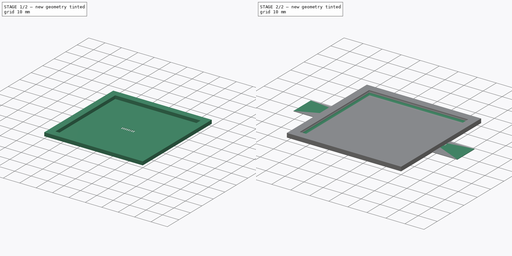
[diagram: build sequence overview — one tinted view per stage of 2, left to right]
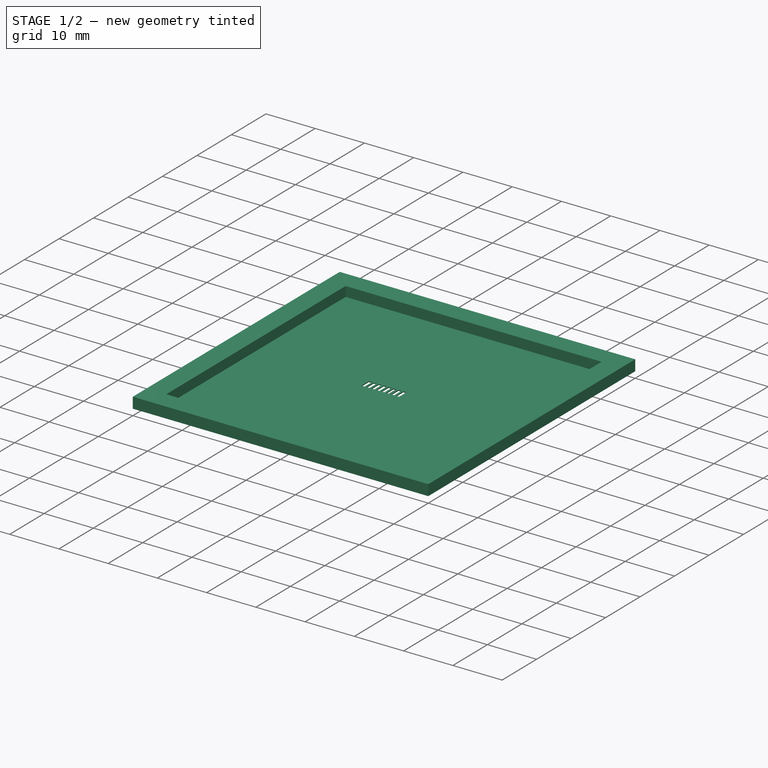
[diagram: stage 1 of 2 — iso view after this stage's code; geometry added in this stage tinted green]
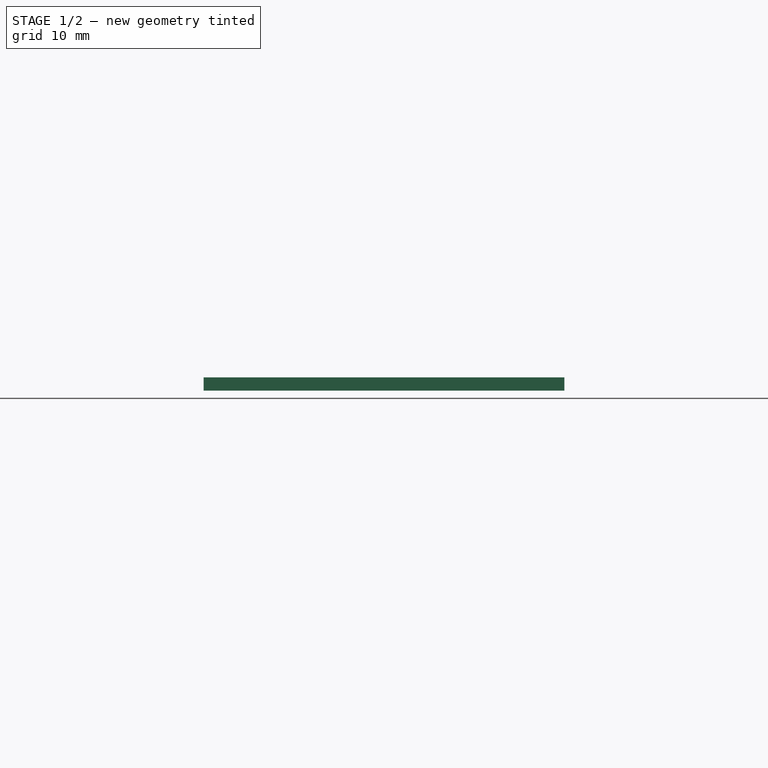
[diagram: stage 1 of 2 — front view after this stage's code; geometry added in this stage tinted green]
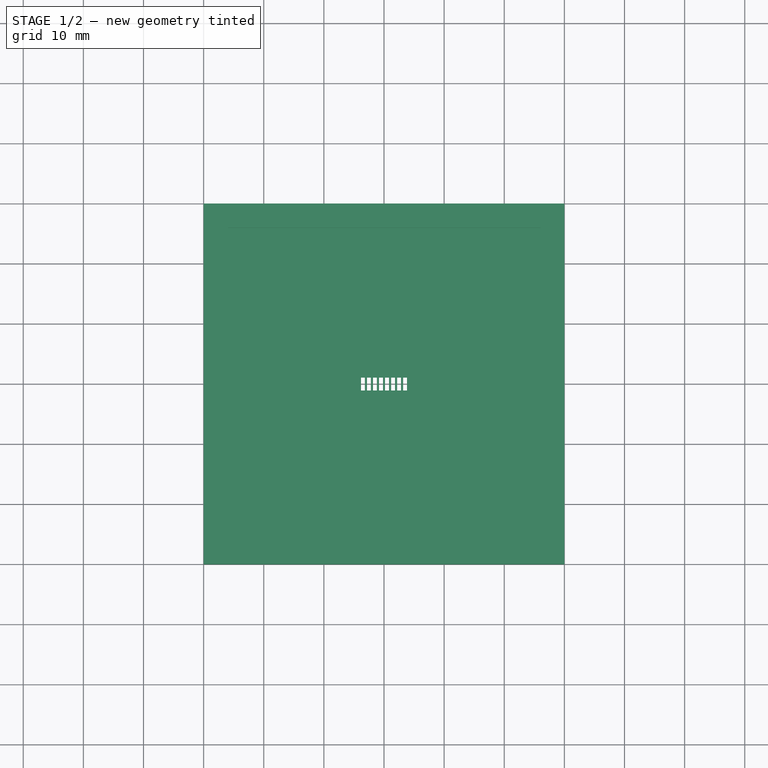
[diagram: stage 1 of 2 — top view after this stage's code; geometry added in this stage tinted green]
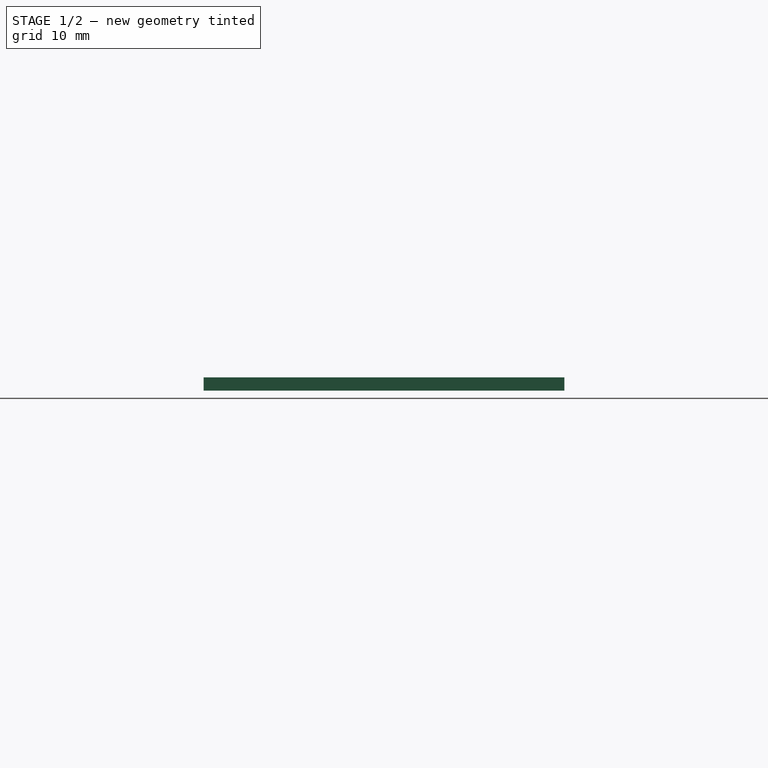
[diagram: stage 1 of 2 — right view after this stage's code; geometry added in this stage tinted green]
FCSTD DOCUMENT  (FreeCAD 0.18R15969 (Git))
Label: interface_board_ffc_stencil
License: All rights reserved
LicenseURL: http://en.wikipedia.org/wiki/All_rights_reserved
objects: Sketcher::SketchObject×3, PartDesign::Pad×3, PartDesign::Body×2, PartDesign::Fillet×1
note: 12 computed .brp shape members not serialized (recipe doc carries the construction recipe); baked Part::Feature solids carry a one-line shape summary decoded from their .brp

FEATURE [PartDesign::Body] Body
  Group = -> [Sketch,Pad]
  Origin = -> Origin
  Tip = -> Pad
FEATURE [Sketcher::SketchObject] Sketch001
  MapMode = 5
  Support = -> [XY_Plane001]
  sketch-geometry (47):
    g0: LineSegment StartX=30 StartY=30 StartZ=0 EndX=-30 EndY=30 EndZ=0
    g1: LineSegment StartX=-30 StartY=30 StartZ=0 EndX=-30 EndY=-30 EndZ=0
    g2: LineSegment StartX=-30 StartY=-30 StartZ=0 EndX=30 EndY=-30 EndZ=0
    g3: LineSegment StartX=30 StartY=-30 StartZ=0 EndX=30 EndY=30 EndZ=0
    g4: Circle [constr] CenterX=0 CenterY=0 CenterZ=0 NormalX=0 NormalY=0 NormalZ=1 AngleXU=0 Radius=42.4264
    g5: LineSegment StartX=-3.825 StartY=-1.075 StartZ=0 EndX=-3.175 EndY=-1.075 EndZ=0
    g6: LineSegment StartX=-3.175 StartY=-1.075 StartZ=0 EndX=-3.175 EndY=1.075 EndZ=0
    g7: LineSegment StartX=-3.175 StartY=1.075 StartZ=0 EndX=-3.825 EndY=1.075 EndZ=0
    g8: LineSegment StartX=-3.825 StartY=1.075 StartZ=0 EndX=-3.825 EndY=-1.075 EndZ=0
    g9: LineSegment StartX=-2.825 StartY=-1.075 StartZ=0 EndX=-2.175 EndY=-1.075 EndZ=0
    g10: LineSegment StartX=-2.175 StartY=-1.075 StartZ=0 EndX=-2.175 EndY=1.075 EndZ=0
    g11: LineSegment StartX=-2.175 StartY=1.075 StartZ=0 EndX=-2.825 EndY=1.075 EndZ=0
    g12: LineSegment StartX=-2.825 StartY=1.075 StartZ=0 EndX=-2.825 EndY=-1.075 EndZ=0
    g13: LineSegment [constr] StartX=-3.825 StartY=-1.075 StartZ=0 EndX=-2.825 EndY=-1.075 EndZ=0
    g14: LineSegment StartX=-1.825 StartY=-1.075 StartZ=0 EndX=-1.175 EndY=-1.075 EndZ=0
    g15: LineSegment StartX=-1.175 StartY=-1.075 StartZ=0 EndX=-1.175 EndY=1.075 EndZ=0
    g16: LineSegment StartX=-1.175 StartY=1.075 StartZ=0 EndX=-1.825 EndY=1.075 EndZ=0
    g17: LineSegment StartX=-1.825 StartY=1.075 StartZ=0 EndX=-1.825 EndY=-1.075 EndZ=0
    g18: LineSegment [constr] StartX=-2.825 StartY=-1.075 StartZ=0 EndX=-1.825 EndY=-1.075 EndZ=0
    g19: LineSegment StartX=-0.825 StartY=-1.075 StartZ=0 EndX=-0.175 EndY=-1.075 EndZ=0
    g20: LineSegment StartX=-0.175 StartY=-1.075 StartZ=0 EndX=-0.175 EndY=1.075 EndZ=0
    g21: LineSegment StartX=-0.175 StartY=1.075 StartZ=0 EndX=-0.825 EndY=1.075 EndZ=0
    g22: LineSegment StartX=-0.825 StartY=1.075 StartZ=0 EndX=-0.825 EndY=-1.075 EndZ=0
    g23: LineSegment [constr] StartX=-1.825 StartY=-1.075 StartZ=0 EndX=-0.825 EndY=-1.075 EndZ=0
    g24: LineSegment StartX=0.175 StartY=-1.075 StartZ=0 EndX=0.825 EndY=-1.075 EndZ=0
    g25: LineSegment StartX=0.825 StartY=-1.075 StartZ=0 EndX=0.825 EndY=1.075 EndZ=0
    g26: LineSegment StartX=0.825 StartY=1.075 StartZ=0 EndX=0.175 EndY=1.075 EndZ=0
    g27: LineSegment StartX=0.175 StartY=1.075 StartZ=0 EndX=0.175 EndY=-1.075 EndZ=0
    g28: LineSegment [constr] StartX=-0.825 StartY=-1.075 StartZ=0 EndX=0.175 EndY=-1.075 EndZ=0
    g29: LineSegment StartX=1.175 StartY=-1.075 StartZ=0 EndX=1.825 EndY=-1.075 EndZ=0
    g30: LineSegment StartX=1.825 StartY=-1.075 StartZ=0 EndX=1.825 EndY=1.075 EndZ=0
    g31: LineSegment StartX=1.825 StartY=1.075 StartZ=0 EndX=1.175 EndY=1.075 EndZ=0
    g32: LineSegment StartX=1.175 StartY=1.075 StartZ=0 EndX=1.175 EndY=-1.075 EndZ=0
    g33: LineSegment [constr] StartX=0.175 StartY=-1.075 StartZ=0 EndX=1.175 EndY=-1.075 EndZ=0
    g34: LineSegment StartX=2.175 StartY=-1.075 StartZ=0 EndX=2.825 EndY=-1.075 EndZ=0
    g35: LineSegment StartX=2.825 StartY=-1.075 StartZ=0 EndX=2.825 EndY=1.075 EndZ=0
    g36: LineSegment StartX=2.825 StartY=1.075 StartZ=0 EndX=2.175 EndY=1.075 EndZ=0
    g37: LineSegment StartX=2.175 StartY=1.075 StartZ=0 EndX=2.175 EndY=-1.075 EndZ=0
    g38: LineSegment [constr] StartX=1.175 StartY=-1.075 StartZ=0 EndX=2.175 EndY=-1.075 EndZ=0
    g39: LineSegment StartX=3.175 StartY=-1.075 StartZ=0 EndX=3.825 EndY=-1.075 EndZ=0
    g40: LineSegment StartX=3.825 StartY=-1.075 StartZ=0 EndX=3.825 EndY=1.075 EndZ=0
    g41: LineSegment StartX=3.825 StartY=1.075 StartZ=0 EndX=3.175 EndY=1.075 EndZ=0
    g42: LineSegment StartX=3.175 StartY=1.075 StartZ=0 EndX=3.175 EndY=-1.075 EndZ=0
    g43: LineSegment [constr] StartX=2.175 StartY=-1.075 StartZ=0 EndX=3.175 EndY=-1.075 EndZ=0
    g44: LineSegment [constr] StartX=-0.175 StartY=1.075 StartZ=0 EndX=0 EndY=0 EndZ=0
    g45: LineSegment [constr] StartX=0 StartY=0 StartZ=0 EndX=0.175 EndY=1.075 EndZ=0
    g46: LineSegment [constr] StartX=0 StartY=0 StartZ=0 EndX=-0.175 EndY=-1.075 EndZ=0
  constraints (130):
    c: Coincident(g0,g1)
    c: Coincident(g1,g2)
    c: Coincident(g2,g3)
    c: Coincident(g3,g0)
    c: Equal(g0,g1)
    c: Equal(g0,g2)
    c: Equal(g0,g3)
    c: PointOnObject(g0,g4)
    c: PointOnObject(g1,g4)
    c: PointOnObject(g2,g4)
    c: PointOnObject(g3,g4)
    c: Coincident(g4,g-1)
    c: Horizontal(g0)
    c: DistanceX(g0,g0) = 60
    c: Coincident(g5,g6)
    c: Coincident(g6,g7)
    c: Coincident(g7,g8)
    c: Coincident(g8,g5)
    c: Horizontal(g5)
    c: Horizontal(g7)
    c: Vertical(g6)
    c: Vertical(g8)
    c: DistanceX(g7,g7) = 0.65
    c: DistanceY(g8,g8) = 2.15
    c: Coincident(g9,g10)
    c: Coincident(g10,g11)
    c: Coincident(g11,g12)
    c: Coincident(g12,g9)
    c: Horizontal(g9)
    c: Horizontal(g11)
    c: Vertical(g10)
    c: Vertical(g12)
    c: Coincident(g5,g13)
    c: Coincident(g9,g13)
    c: Distance(g13) = 1
    c: Angle(g13) = 0
    c: Coincident(g14,g15)
    c: Coincident(g15,g16)
    c: Coincident(g16,g17)
    c: Coincident(g17,g14)
    c: Horizontal(g14)
    c: Horizontal(g16)
    c: Vertical(g15)
    c: Vertical(g17)
    c: Coincident(g9,g18)
    c: Coincident(g14,g18)
    c: Equal(g13,g18)
    c: Parallel(g18,g13)
    c: Coincident(g19,g20)
    c: Coincident(g20,g21)
    c: Coincident(g21,g22)
    c: Coincident(g22,g19)
    c: Horizontal(g19)
    c: Horizontal(g21)
    c: Vertical(g22)
    c: Coincident(g14,g23)
    c: Coincident(g19,g23)
    c: Equal(g13,g23)
    c: Parallel(g23,g13)
    c: Coincident(g24,g25)
    c: Coincident(g25,g26)
    c: Coincident(g26,g27)
    c: Coincident(g27,g24)
    c: Horizontal(g24)
    c: Horizontal(g26)
    c: Vertical(g25)
    c: Vertical(g27)
    c: Coincident(g19,g28)
    c: Coincident(g24,g28)
    c: Equal(g13,g28)
    c: Parallel(g28,g13)
    c: Coincident(g29,g30)
    c: Coincident(g30,g31)
    c: Coincident(g31,g32)
    c: Coincident(g32,g29)
    c: Horizontal(g29)
    c: Horizontal(g31)
    c: Vertical(g30)
    c: Vertical(g32)
    c: Coincident(g24,g33)
    c: Coincident(g29,g33)
    c: Equal(g13,g33)
    c: Parallel(g33,g13)
    c: Coincident(g34,g35)
    c: Coincident(g35,g36)
    c: Coincident(g36,g37)
    c: Coincident(g37,g34)
    c: Horizontal(g34)
    c: Horizontal(g36)
    c: Vertical(g35)
    c: Vertical(g37)
    c: Coincident(g29,g38)
    c: Coincident(g34,g38)
    c: Equal(g13,g38)
    c: Parallel(g38,g13)
    c: Coincident(g39,g40)
    c: Coincident(g40,g41)
    c: Coincident(g41,g42)
    c: Coincident(g42,g39)
    c: Horizontal(g39)
    c: Horizontal(g41)
    c: Vertical(g40)
    c: Vertical(g42)
    c: Coincident(g34,g43)
    c: Coincident(g39,g43)
    c: Equal(g13,g43)
    c: Parallel(g43,g13)
    c: Coincident(g44,g20)
    c: Coincident(g44,g-1)
    c: Coincident(g45,g-1)
    c: Coincident(g45,g26)
    c: Coincident(g46,g-1)
    c: Coincident(g46,g19)
    c: Equal(g46,g44)
    c: Equal(g44,g45)
    c: Equal(g41,g36)
    c: Equal(g36,g31)
    c: Equal(g31,g26)
    c: Equal(g26,g21)
    c: Equal(g21,g16)
    c: Equal(g16,g11)
    c: Equal(g11,g7)
    c: Equal(g42,g37)
    c: Equal(g37,g32)
    c: Equal(g32,g27)
    c: Equal(g27,g22)
    c: Equal(g22,g17)
    c: Equal(g17,g12)
    c: Equal(g12,g8)
    c: Vertical(g20)
FEATURE [PartDesign::Pad] Pad001
  Length = 0.2
  Length2 = 100
  Profile = -> Sketch001
  Refine = true
  Type = 0
FEATURE [Sketcher::SketchObject] Sketch002
  ExternalGeometry = -> [Pad001]
  MapMode = 5
  Placement = pos=(0,0,0.2) rot=(0,0,1;0rad)
  Support = -> [Pad001]
  sketch-geometry (9):
    g0: LineSegment StartX=-30 StartY=30 StartZ=0 EndX=30 EndY=30 EndZ=0
    g1: LineSegment StartX=30 StartY=30 StartZ=0 EndX=30 EndY=-30 EndZ=0
    g2: LineSegment StartX=30 StartY=-30 StartZ=0 EndX=-30 EndY=-30 EndZ=0
    g3: LineSegment StartX=-30 StartY=-30 StartZ=0 EndX=-30 EndY=30 EndZ=0
    g4: LineSegment StartX=-26 StartY=26 StartZ=0 EndX=-26 EndY=-26 EndZ=0
    g5: LineSegment StartX=-26 StartY=-26 StartZ=0 EndX=26 EndY=-26 EndZ=0
    g6: LineSegment StartX=26 StartY=-26 StartZ=0 EndX=26 EndY=26 EndZ=0
    g7: LineSegment StartX=26 StartY=26 StartZ=0 EndX=-26 EndY=26 EndZ=0
    g8: Circle [constr] CenterX=0 CenterY=0 CenterZ=0 NormalX=0 NormalY=0 NormalZ=1 AngleXU=0 Radius=36.7696
  constraints (23):
    c: Coincident(g0,g-4)
    c: Coincident(g0,g-6)
    c: Coincident(g1,g0)
    c: Vertical(g1)
    c: Coincident(g2,g1)
    c: Coincident(g2,g-5)
    c: Horizontal(g2)
    c: Coincident(g3,g2)
    c: Coincident(g3,g0)
    c: Coincident(g4,g5)
    c: Coincident(g5,g6)
    c: Coincident(g6,g7)
    c: Coincident(g7,g4)
    c: Equal(g4,g5)
    c: Equal(g4,g6)
    c: Equal(g4,g7)
    c: PointOnObject(g4,g8)
    c: PointOnObject(g5,g8)
    c: PointOnObject(g6,g8)
    c: PointOnObject(g7,g8)
    c: Coincident(g8,g-1)
    c: DistanceX(g7,g7) = 52
    c: Horizontal(g7)
FEATURE [PartDesign::Pad] Pad002
  BaseFeature = -> Pad001
  Length = 2
  Length2 = 100
  Profile = -> Sketch002
  Refine = true
  Type = 0
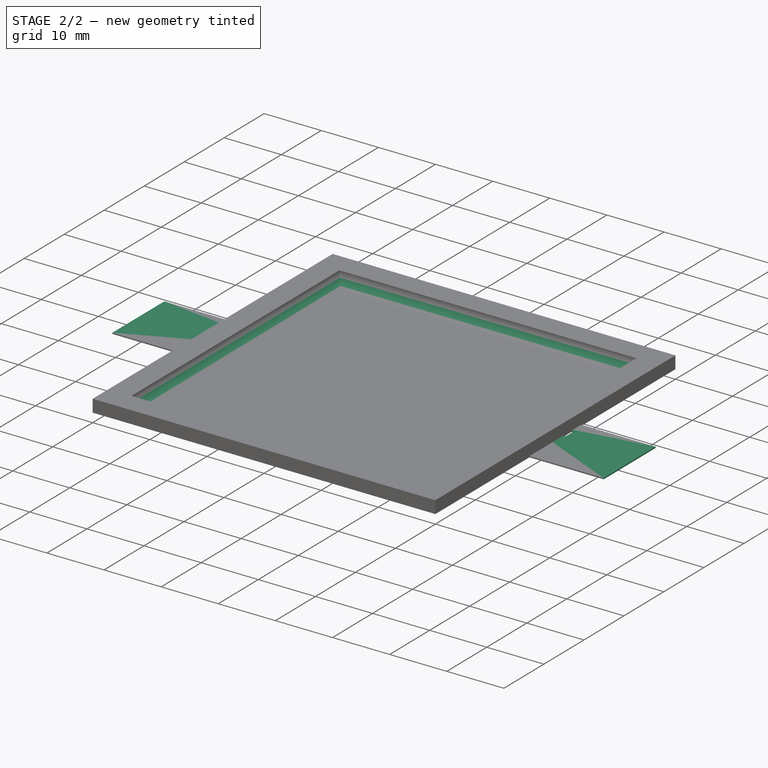
[diagram: stage 2 of 2 — iso view after this stage's code; geometry added in this stage tinted green]
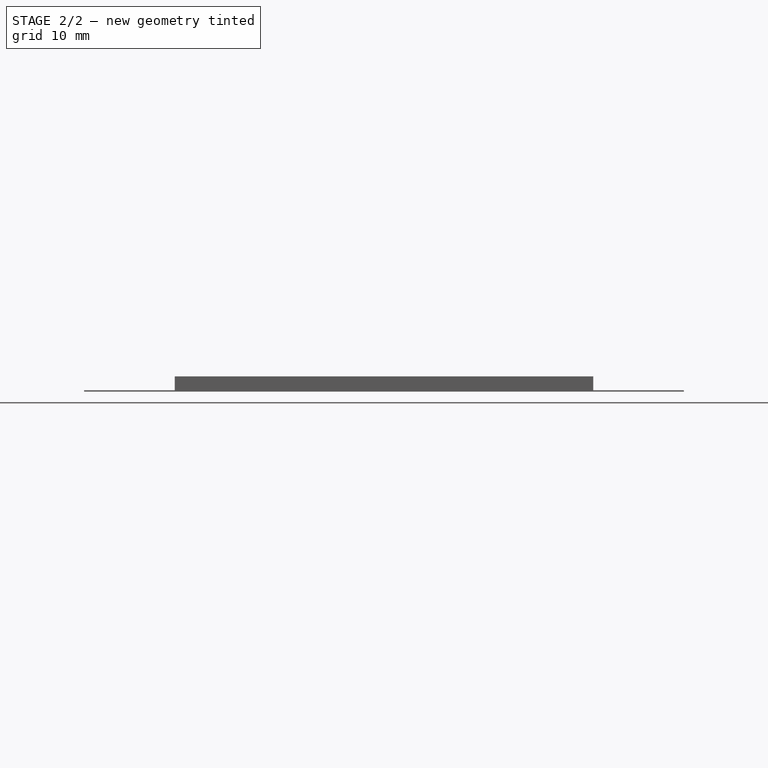
[diagram: stage 2 of 2 — front view after this stage's code; geometry added in this stage tinted green]
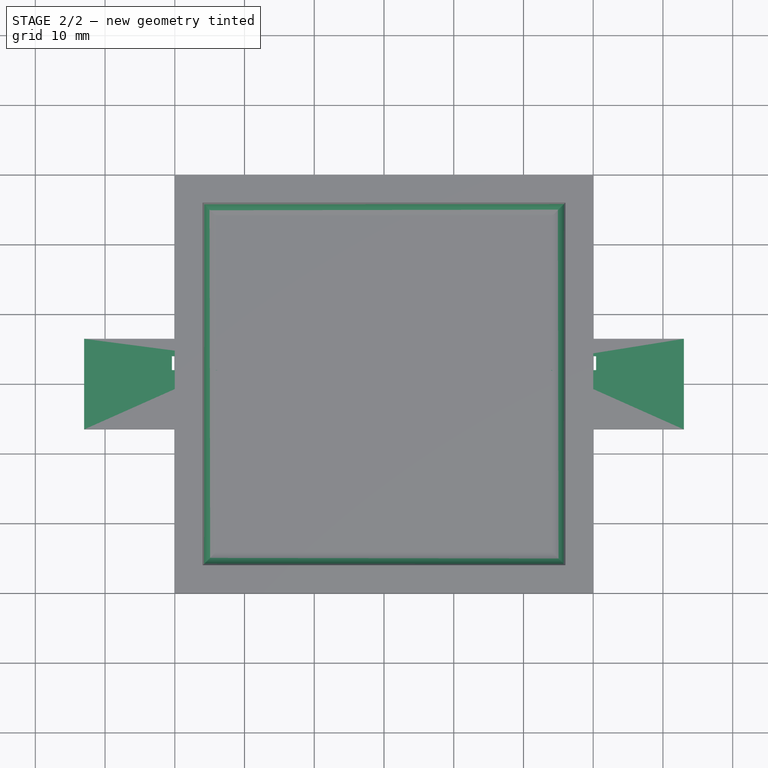
[diagram: stage 2 of 2 — top view after this stage's code; geometry added in this stage tinted green]
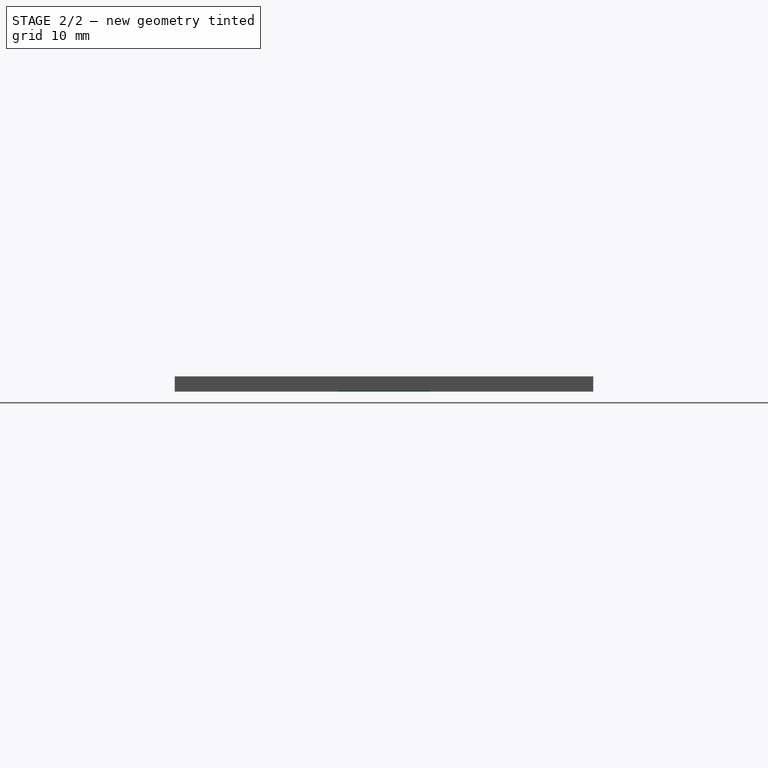
[diagram: stage 2 of 2 — right view after this stage's code; geometry added in this stage tinted green]
FEATURE [Sketcher::SketchObject] Sketch
  MapMode = 5
  Support = -> [XY_Plane]
  sketch-geometry (89):
    g0: LineSegment StartX=-43 StartY=6.5 StartZ=0 EndX=43 EndY=6.5 EndZ=0
    g1: LineSegment StartX=43 StartY=6.5 StartZ=0 EndX=43 EndY=-6.5 EndZ=0
    g2: LineSegment StartX=43 StartY=-6.5 StartZ=0 EndX=-43 EndY=-6.5 EndZ=0
    g3: LineSegment StartX=-43 StartY=-6.5 StartZ=0 EndX=-43 EndY=6.5 EndZ=0
    g4: LineSegment [constr] StartX=-43 StartY=6.5 StartZ=0 EndX=0 EndY=0 EndZ=0
    g5: LineSegment [constr] StartX=0 StartY=0 StartZ=0 EndX=43 EndY=6.5 EndZ=0
    g6: LineSegment [constr] StartX=0 StartY=0 StartZ=0 EndX=-43 EndY=-6.5 EndZ=0
    g7: LineSegment StartX=-30.42 StartY=2 StartZ=0 EndX=-29.92 EndY=2 EndZ=0
    g8: LineSegment StartX=-29.92 StartY=2 StartZ=0 EndX=-29.92 EndY=4 EndZ=0
    g9: LineSegment StartX=-29.92 StartY=4 StartZ=0 EndX=-30.42 EndY=4 EndZ=0
    g10: LineSegment StartX=-30.42 StartY=4 StartZ=0 EndX=-30.42 EndY=2 EndZ=0
    g11: LineSegment StartX=-29.42 StartY=2 StartZ=0 EndX=-28.92 EndY=2 EndZ=0
    g12: LineSegment StartX=-28.92 StartY=2 StartZ=0 EndX=-28.92 EndY=4 EndZ=0
    g13: LineSegment StartX=-28.92 StartY=4 StartZ=0 EndX=-29.42 EndY=4 EndZ=0
    g14: LineSegment StartX=-29.42 StartY=4 StartZ=0 EndX=-29.42 EndY=2 EndZ=0
    g15: LineSegment StartX=-28.42 StartY=2 StartZ=0 EndX=-27.92 EndY=2 EndZ=0
    g16: LineSegment StartX=-27.92 StartY=2 StartZ=0 EndX=-27.92 EndY=4 EndZ=0
    g17: LineSegment StartX=-27.92 StartY=4 StartZ=0 EndX=-28.42 EndY=4 EndZ=0
    g18: LineSegment StartX=-28.42 StartY=4 StartZ=0 EndX=-28.42 EndY=2 EndZ=0
    g19: LineSegment StartX=-27.42 StartY=2 StartZ=0 EndX=-26.92 EndY=2 EndZ=0
    g20: LineSegment StartX=-26.92 StartY=2 StartZ=0 EndX=-26.92 EndY=4 EndZ=0
    g21: LineSegment StartX=-26.92 StartY=4 StartZ=0 EndX=-27.42 EndY=4 EndZ=0
    g22: LineSegment StartX=-27.42 StartY=4 StartZ=0 EndX=-27.42 EndY=2 EndZ=0
    g23: LineSegment StartX=-26.42 StartY=2 StartZ=0 EndX=-25.92 EndY=2 EndZ=0
    g24: LineSegment StartX=-25.92 StartY=2 StartZ=0 EndX=-25.92 EndY=4 EndZ=0
    g25: LineSegment StartX=-25.92 StartY=4 StartZ=0 EndX=-26.42 EndY=4 EndZ=0
    g26: LineSegment StartX=-26.42 StartY=4 StartZ=0 EndX=-26.42 EndY=2 EndZ=0
    g27: LineSegment StartX=-25.42 StartY=2 StartZ=0 EndX=-24.92 EndY=2 EndZ=0
    g28: LineSegment StartX=-24.92 StartY=2 StartZ=0 EndX=-24.92 EndY=4 EndZ=0
    g29: LineSegment StartX=-24.92 StartY=4 StartZ=0 EndX=-25.42 EndY=4 EndZ=0
    g30: LineSegment StartX=-25.42 StartY=4 StartZ=0 EndX=-25.42 EndY=2 EndZ=0
    g31: LineSegment StartX=-24.42 StartY=2 StartZ=0 EndX=-23.92 EndY=2 EndZ=0
    g32: LineSegment StartX=-23.92 StartY=2 StartZ=0 EndX=-23.92 EndY=4 EndZ=0
    g33: LineSegment StartX=-23.92 StartY=4 StartZ=0 EndX=-24.42 EndY=4 EndZ=0
    g34: LineSegment StartX=-24.42 StartY=4 StartZ=0 EndX=-24.42 EndY=2 EndZ=0
    g35: LineSegment StartX=-23.42 StartY=2 StartZ=0 EndX=-22.92 EndY=2 EndZ=0
    g36: LineSegment StartX=-22.92 StartY=2 StartZ=0 EndX=-22.92 EndY=4 EndZ=0
    g37: LineSegment StartX=-22.92 StartY=4 StartZ=0 EndX=-23.42 EndY=4 EndZ=0
    g38: LineSegment StartX=-23.42 StartY=4 StartZ=0 EndX=-23.42 EndY=2 EndZ=0
    g39: LineSegment [constr] StartX=-29.92 StartY=4 StartZ=0 EndX=-29.42 EndY=4 EndZ=0
    g40: LineSegment [constr] StartX=-28.92 StartY=4 StartZ=0 EndX=-28.42 EndY=4 EndZ=0
    g41: LineSegment [constr] StartX=-27.92 StartY=4 StartZ=0 EndX=-27.42 EndY=4 EndZ=0
    g42: LineSegment [constr] StartX=-26.92 StartY=4 StartZ=0 EndX=-26.42 EndY=4 EndZ=0
    g43: LineSegment [constr] StartX=-25.92 StartY=4 StartZ=0 EndX=-25.42 EndY=4 EndZ=0
    g44: LineSegment [constr] StartX=-24.92 StartY=4 StartZ=0 EndX=-24.42 EndY=4 EndZ=0
    g45: LineSegment [constr] StartX=-23.92 StartY=4 StartZ=0 EndX=-23.42 EndY=4 EndZ=0
    g46: LineSegment [constr] StartX=-30.42 StartY=4 StartZ=0 EndX=-26.67 EndY=6.5 EndZ=0
    g47: LineSegment [constr] StartX=-26.67 StartY=6.5 StartZ=0 EndX=-22.92 EndY=4 EndZ=0
    g48: LineSegment StartX=22.92 StartY=2 StartZ=0 EndX=23.42 EndY=2 EndZ=0
    g49: LineSegment StartX=23.42 StartY=2 StartZ=0 EndX=23.42 EndY=4 EndZ=0
    g50: LineSegment StartX=23.42 StartY=4 StartZ=0 EndX=22.92 EndY=4 EndZ=0
    g51: LineSegment StartX=22.92 StartY=4 StartZ=0 EndX=22.92 EndY=2 EndZ=0
    g52: LineSegment StartX=23.92 StartY=2 StartZ=0 EndX=24.42 EndY=2 EndZ=0
    g53: LineSegment StartX=24.42 StartY=2 StartZ=0 EndX=24.42 EndY=4 EndZ=0
    g54: LineSegment StartX=24.42 StartY=4 StartZ=0 EndX=23.92 EndY=4 EndZ=0
    g55: LineSegment StartX=23.92 StartY=4 StartZ=0 EndX=23.92 EndY=2 EndZ=0
    g56: LineSegment StartX=24.92 StartY=2 StartZ=0 EndX=25.42 EndY=2 EndZ=0
    g57: LineSegment StartX=25.42 StartY=2 StartZ=0 EndX=25.42 EndY=4 EndZ=0
    g58: LineSegment StartX=25.42 StartY=4 StartZ=0 EndX=24.92 EndY=4 EndZ=0
    g59: LineSegment StartX=24.92 StartY=4 StartZ=0 EndX=24.92 EndY=2 EndZ=0
    g60: LineSegment StartX=25.92 StartY=2 StartZ=0 EndX=26.42 EndY=2 EndZ=0
    g61: LineSegment StartX=26.42 StartY=2 StartZ=0 EndX=26.42 EndY=4 EndZ=0
    g62: LineSegment StartX=26.42 StartY=4 StartZ=0 EndX=25.92 EndY=4 EndZ=0
    g63: LineSegment StartX=25.92 StartY=4 StartZ=0 EndX=25.92 EndY=2 EndZ=0
    g64: LineSegment StartX=26.92 StartY=2 StartZ=0 EndX=27.42 EndY=2 EndZ=0
    g65: LineSegment StartX=27.42 StartY=2 StartZ=0 EndX=27.42 EndY=4 EndZ=0
    g66: LineSegment StartX=27.42 StartY=4 StartZ=0 EndX=26.92 EndY=4 EndZ=0
    g67: LineSegment StartX=26.92 StartY=4 StartZ=0 EndX=26.92 EndY=2 EndZ=0
    g68: LineSegment StartX=27.92 StartY=2 StartZ=0 EndX=28.42 EndY=2 EndZ=0
    g69: LineSegment StartX=28.42 StartY=2 StartZ=0 EndX=28.42 EndY=4 EndZ=0
    g70: LineSegment StartX=28.42 StartY=4 StartZ=0 EndX=27.92 EndY=4 EndZ=0
    g71: LineSegment StartX=27.92 StartY=4 StartZ=0 EndX=27.92 EndY=2 EndZ=0
    g72: LineSegment StartX=28.92 StartY=2 StartZ=0 EndX=29.42 EndY=2 EndZ=0
    g73: LineSegment StartX=29.42 StartY=2 StartZ=0 EndX=29.42 EndY=4 EndZ=0
    g74: LineSegment StartX=29.42 StartY=4 StartZ=0 EndX=28.92 EndY=4 EndZ=0
    g75: LineSegment StartX=28.92 StartY=4 StartZ=0 EndX=28.92 EndY=2 EndZ=0
    g76: LineSegment StartX=29.92 StartY=2 StartZ=0 EndX=30.42 EndY=2 EndZ=0
    g77: LineSegment StartX=30.42 StartY=2 StartZ=0 EndX=30.42 EndY=4 EndZ=0
    g78: LineSegment StartX=30.42 StartY=4 StartZ=0 EndX=29.92 EndY=4 EndZ=0
    g79: LineSegment StartX=29.92 StartY=4 StartZ=0 EndX=29.92 EndY=2 EndZ=0
    g80: LineSegment [constr] StartX=23.42 StartY=4 StartZ=0 EndX=23.92 EndY=4 EndZ=0
    g81: LineSegment [constr] StartX=24.42 StartY=4 StartZ=0 EndX=24.92 EndY=4 EndZ=0
    g82: LineSegment [constr] StartX=25.42 StartY=4 StartZ=0 EndX=25.92 EndY=4 EndZ=0
    g83: LineSegment [constr] StartX=26.42 StartY=4 StartZ=0 EndX=26.92 EndY=4 EndZ=0
    g84: LineSegment [constr] StartX=27.42 StartY=4 StartZ=0 EndX=27.92 EndY=4 EndZ=0
    g85: LineSegment [constr] StartX=28.42 StartY=4 StartZ=0 EndX=28.92 EndY=4 EndZ=0
    g86: LineSegment [constr] StartX=29.42 StartY=4 StartZ=0 EndX=29.92 EndY=4 EndZ=0
    g87: LineSegment [constr] StartX=22.92 StartY=4 StartZ=0 EndX=26.67 EndY=6.5 EndZ=0
    g88: LineSegment [constr] StartX=26.67 StartY=6.5 StartZ=0 EndX=30.42 EndY=4 EndZ=0
  constraints (248):
    c: Coincident(g0,g1)
    c: Coincident(g1,g2)
    c: Coincident(g2,g3)
    c: Coincident(g3,g0)
    c: Horizontal(g0)
    c: Horizontal(g2)
    c: Vertical(g1)
    c: Vertical(g3)
    c: DistanceX(g0,g0) = 86
    c: DistanceY(g3,g3) = 13
    c: Coincident(g4,g0)
    c: Coincident(g4,g-1)
    c: Coincident(g5,g-1)
    c: Coincident(g5,g0)
    c: Coincident(g6,g-1)
    c: Coincident(g6,g2)
    c: Equal(g6,g4)
    c: Equal(g4,g5)
    c: Coincident(g7,g8)
    c: Coincident(g8,g9)
    c: Coincident(g9,g10)
    c: Coincident(g10,g7)
    c: Horizontal(g7)
    c: Horizontal(g9)
    c: Vertical(g8)
    c: Vertical(g10)
    c: Coincident(g11,g12)
    c: Coincident(g12,g13)
    c: Coincident(g13,g14)
    c: Coincident(g14,g11)
    c: Horizontal(g11)
    c: Horizontal(g13)
    c: Vertical(g12)
    c: Vertical(g14)
    c: Coincident(g15,g16)
    c: Coincident(g16,g17)
    c: Coincident(g17,g18)
    c: Coincident(g18,g15)
    c: Horizontal(g15)
    c: Horizontal(g17)
    c: Vertical(g16)
    c: Vertical(g18)
    c: Coincident(g19,g20)
    c: Coincident(g20,g21)
    c: Coincident(g21,g22)
    c: Coincident(g22,g19)
    c: Horizontal(g19)
    c: Horizontal(g21)
    c: Vertical(g20)
    c: Vertical(g22)
    c: Coincident(g23,g24)
    c: Coincident(g24,g25)
    c: Coincident(g25,g26)
    c: Coincident(g26,g23)
    c: Horizontal(g23)
    c: Horizontal(g25)
    c: Vertical(g24)
    c: Vertical(g26)
    c: Coincident(g27,g28)
    c: Coincident(g28,g29)
    c: Coincident(g29,g30)
    c: Coincident(g30,g27)
    c: Horizontal(g27)
    c: Horizontal(g29)
    c: Vertical(g28)
    c: Vertical(g30)
    c: Coincident(g31,g32)
    c: Coincident(g32,g33)
    c: Coincident(g33,g34)
    c: Coincident(g34,g31)
    c: Horizontal(g31)
    c: Horizontal(g33)
    c: Vertical(g32)
    c: Vertical(g34)
    c: Coincident(g35,g36)
    c: Coincident(g36,g37)
    c: Coincident(g37,g38)
    c: Coincident(g38,g35)
    c: Horizontal(g35)
    c: Horizontal(g37)
    c: Vertical(g36)
    c: Vertical(g38)
    c: Equal(g10,g14)
    c: Equal(g14,g18)
    c: Equal(g18,g22)
    c: Equal(g22,g26)
    c: Equal(g26,g30)
    c: Equal(g30,g34)
    c: Equal(g34,g38)
    c: Equal(g37,g33)
    c: Equal(g33,g29)
    c: Equal(g29,g25)
    c: Equal(g25,g21)
    c: Equal(g21,g17)
    c: Equal(g17,g13)
    c: Equal(g13,g9)
    c: Coincident(g39,g8)
    c: Coincident(g39,g13)
    c: Horizontal(g39)
    c: Coincident(g40,g12)
    c: Coincident(g40,g17)
    c: Coincident(g41,g16)
    c: Coincident(g41,g21)
    c: Coincident(g42,g20)
    c: Coincident(g42,g25)
    c: Coincident(g43,g24)
    c: Coincident(g43,g29)
    c: Coincident(g44,g28)
    c: Coincident(g44,g33)
    c: Coincident(g45,g32)
    c: Coincident(g45,g37)
    c: Equal(g41,g42)
    c: Equal(g42,g43)
    c: Equal(g43,g44)
    c: Equal(g44,g45)
    c: Equal(g45,g39)
    c: Equal(g39,g40)
    c: Horizontal(g40)
    c: Horizontal(g41)
    c: Horizontal(g42)
    c: Horizontal(g43)
    c: Horizontal(g44)
    c: Horizontal(g45)
    c: DistanceX(g9,g9) = 0.5
    c: DistanceX(g9,g13) = 1
    c: DistanceY(g10,g10) = 2
    c: Coincident(g46,g9)
    c: Coincident(g47,g46)
    c: Coincident(g47,g36)
    c: Equal(g46,g47)
    c: Coincident(g48,g49)
    c: Coincident(g49,g50)
    c: Coincident(g50,g51)
    c: Coincident(g51,g48)
    c: Horizontal(g48)
    c: Horizontal(g50)
    c: Vertical(g49)
    c: Vertical(g51)
    c: Coincident(g52,g53)
    c: Coincident(g53,g54)
    c: Coincident(g54,g55)
    c: Coincident(g55,g52)
    c: Horizontal(g52)
    c: Horizontal(g54)
    c: Vertical(g53)
    c: Vertical(g55)
    c: Coincident(g56,g57)
    c: Coincident(g57,g58)
    c: Coincident(g58,g59)
    c: Coincident(g59,g56)
    c: Horizontal(g56)
    c: Horizontal(g58)
    c: Vertical(g57)
    c: Vertical(g59)
    c: Coincident(g60,g61)
    c: Coincident(g61,g62)
    c: Coincident(g62,g63)
    c: Coincident(g63,g60)
    c: Horizontal(g60)
    c: Horizontal(g62)
    c: Vertical(g61)
    c: Vertical(g63)
    c: Coincident(g64,g65)
    c: Coincident(g65,g66)
    c: Coincident(g66,g67)
    c: Coincident(g67,g64)
    c: Horizontal(g64)
    c: Horizontal(g66)
    c: Vertical(g65)
    c: Vertical(g67)
    c: Coincident(g68,g69)
    c: Coincident(g69,g70)
    c: Coincident(g70,g71)
    c: Coincident(g71,g68)
    c: Horizontal(g68)
    c: Horizontal(g70)
    c: Vertical(g69)
    c: Vertical(g71)
    c: Coincident(g72,g73)
    c: Coincident(g73,g74)
    c: Coincident(g74,g75)
    c: Coincident(g75,g72)
    c: Horizontal(g72)
    c: Horizontal(g74)
    c: Vertical(g73)
    c: Vertical(g75)
    c: Coincident(g76,g77)
    c: Coincident(g77,g78)
    c: Coincident(g78,g79)
    c: Coincident(g79,g76)
    c: Horizontal(g76)
    c: Horizontal(g78)
    c: Vertical(g77)
    c: Vertical(g79)
    c: Equal(g51,g55)
    c: Equal(g55,g59)
    c: Equal(g59,g63)
    c: Equal(g63,g67)
    c: Equal(g67,g71)
    c: Equal(g71,g75)
    c: Equal(g75,g79)
    c: Equal(g78,g74)
    c: Equal(g74,g70)
    c: Equal(g70,g66)
    c: Equal(g66,g62)
    c: Equal(g62,g58)
    c: Equal(g58,g54)
    c: Equal(g54,g50)
    c: Coincident(g80,g49)
    c: Coincident(g80,g54)
    c: Horizontal(g80)
    c: Coincident(g81,g53)
    c: Coincident(g81,g58)
    c: Coincident(g82,g57)
    c: Coincident(g82,g62)
    c: Coincident(g83,g61)
    c: Coincident(g83,g66)
    c: Coincident(g84,g65)
    c: Coincident(g84,g70)
    c: Coincident(g85,g69)
    c: Coincident(g85,g74)
    c: Coincident(g86,g73)
    c: Coincident(g86,g78)
    c: Equal(g82,g83)
    c: Equal(g83,g84)
    c: Equal(g84,g85)
    c: Equal(g85,g86)
    c: Equal(g86,g80)
    c: Equal(g80,g81)
    c: Horizontal(g81)
    c: Horizontal(g82)
    c: Horizontal(g83)
    c: Horizontal(g84)
    c: Horizontal(g85)
    c: Horizontal(g86)
    c: Equal(g9,g50) = 0.5
    c: DistanceX(g50,g54) = 1
    c: Equal(g10,g51) = 2
    c: Coincident(g87,g50)
    c: Coincident(g88,g87)
    c: Coincident(g88,g77)
    c: Equal(g87,g88)
    c: PointOnObject(g46,g0)
    c: PointOnObject(g87,g0)
    c: DistanceX(g-1,g87) = 26.67
    c: DistanceX(g46,g-1) = 26.67
    c: Equal(g47,g87)
    c: DistanceY(g9,g46) = 2.5
FEATURE [PartDesign::Pad] Pad
  Length = 0.2
  Length2 = 100
  Profile = -> Sketch
  Refine = true
  Type = 0
FEATURE [PartDesign::Fillet] Fillet
  Base = -> Pad002 [Edge101,Edge104,Edge102,Edge103]
  BaseFeature = -> Pad002
  Radius = 1.9
FEATURE [PartDesign::Body] Body001
  Group = -> [Sketch001,Pad001,Sketch002,Pad002,Fillet]
  Origin = -> Origin001
  Tip = -> Fillet
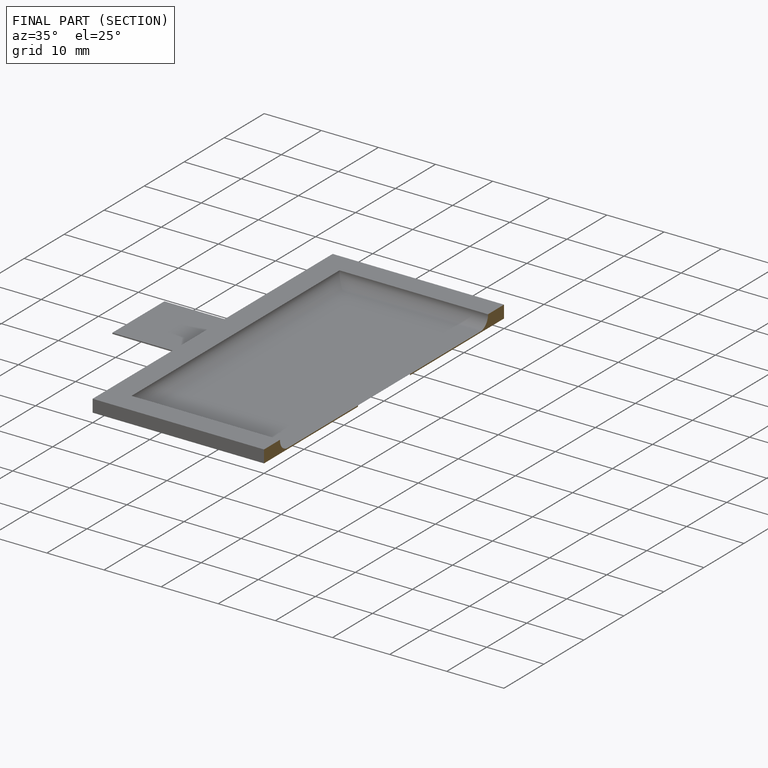
[diagram: finished part — half-section view (interior)]
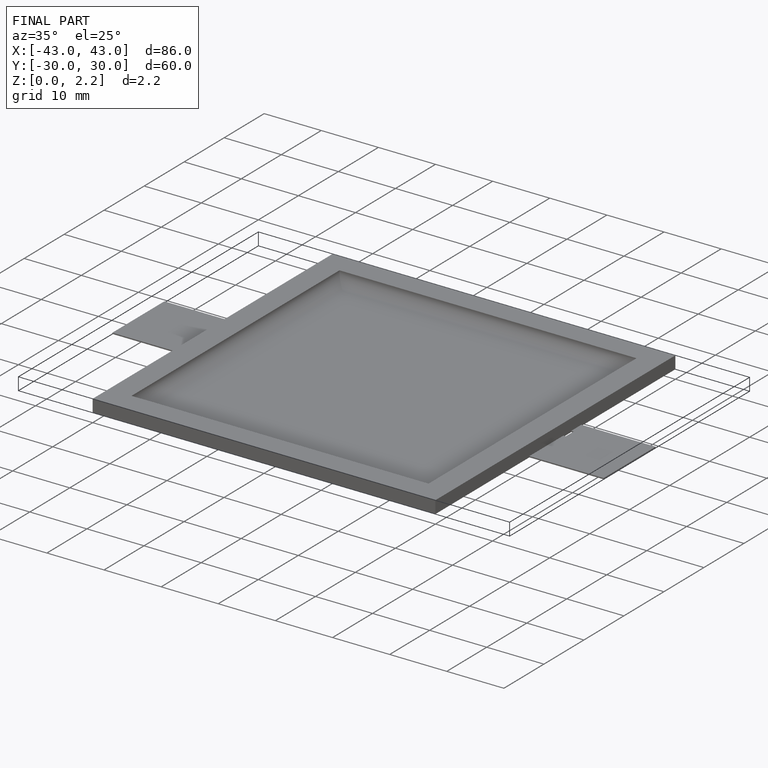
[diagram: finished part — iso view with bounding-box wireframe]
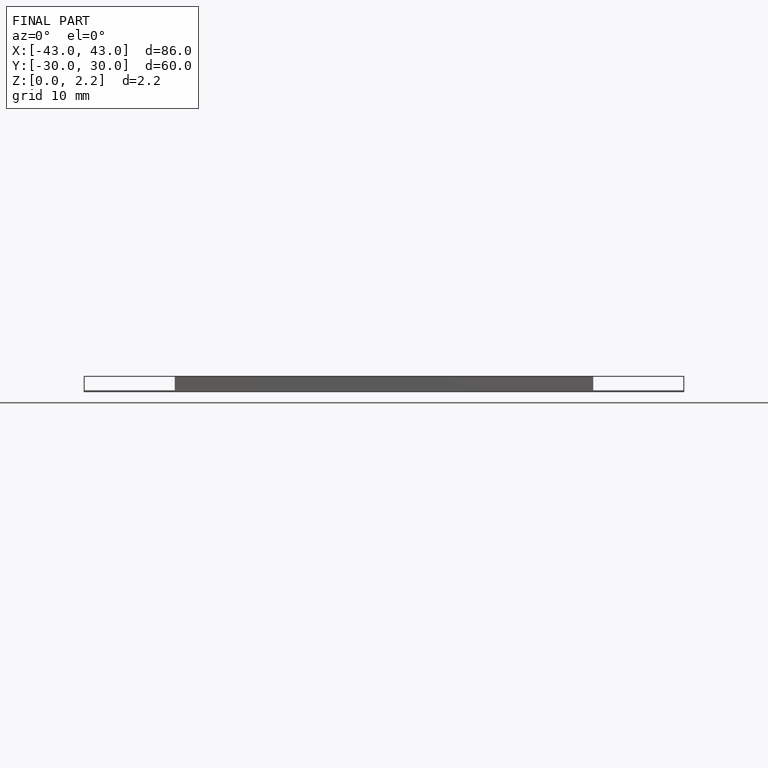
[diagram: finished part — front view with bounding-box wireframe]
